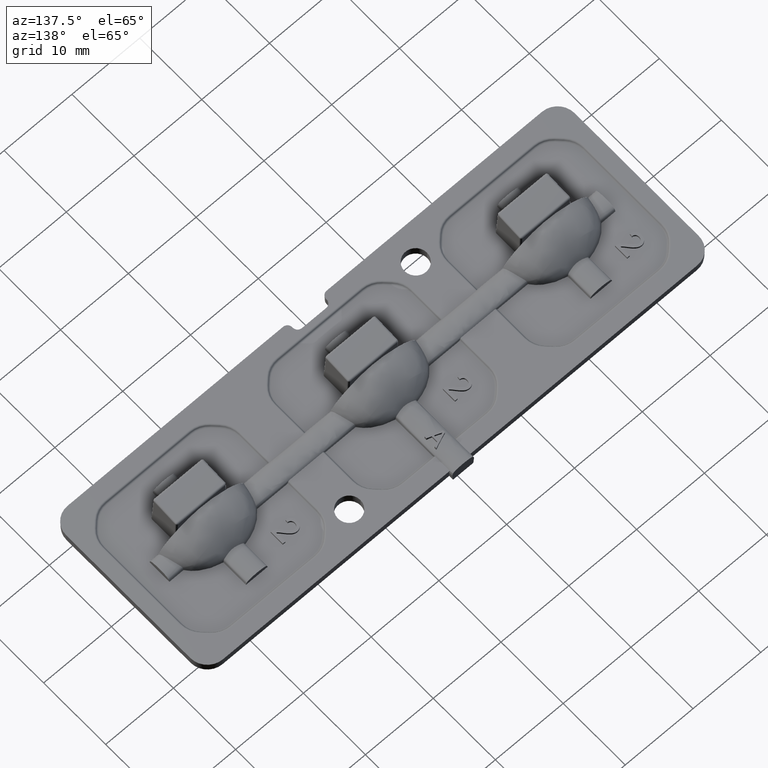
[diagram: clean part render]
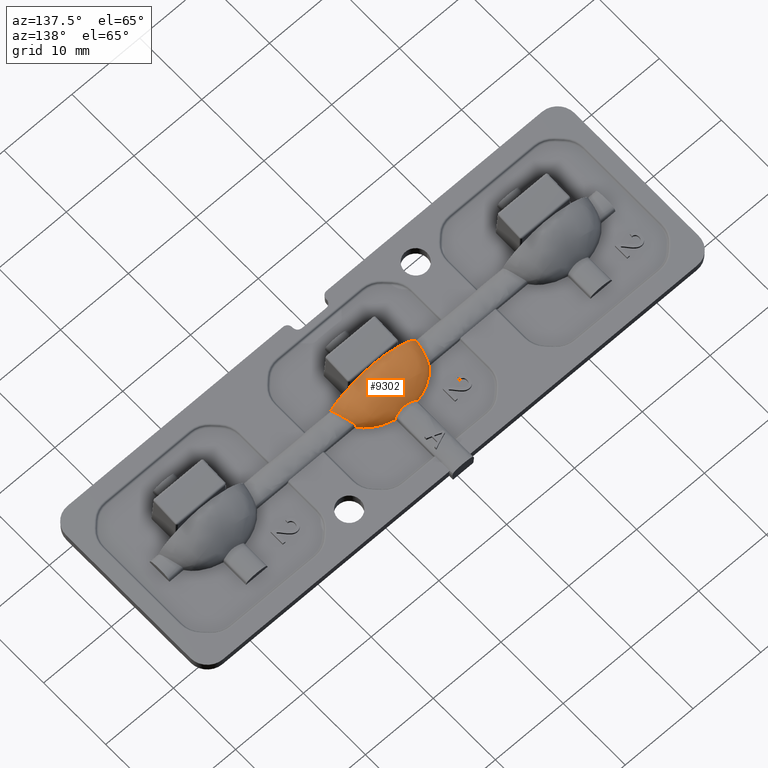
[diagram: same view with one face highlighted and labeled with its STEP entity id]
A machine part, auxiliary view. The second image highlights one B-rep face of the part: STEP entity #9302.
In plain terms, the highlighted face is a freeform B-spline surface patch.
Its self-contained STEP definition (entity closure, byte-faithful):
#15 = CARTESIAN_POINT ( 'NONE',  ( 1.506228198039878000, 3.809184108596383600, 1.568570613312605800 ) ) ;
#20 = ORIENTED_EDGE ( 'NONE', *, *, #9371, .T. ) ;
#44 = VERTEX_POINT ( 'NONE', #2837 ) ;
#104 = CARTESIAN_POINT ( 'NONE',  ( -0.2536646103747375300, 2.765282664105811700, 3.018408401136615500 ) ) ;
#166 = CARTESIAN_POINT ( 'NONE',  ( 0.1729652754115934600, 3.622831859225883500, 2.001422054282612400 ) ) ;
#196 = CARTESIAN_POINT ( 'NONE',  ( -5.559701811650086300, 1.111227689894708200, 1.833885583468201500 ) ) ;
#231 = CARTESIAN_POINT ( 'NONE',  ( 0.2482346558965557700, 3.951873610259530400, 1.383655969726491200 ) ) ;
#263 = CARTESIAN_POINT ( 'NONE',  ( -6.289939318987311600, -1.455726409393355300, 1.632099373868087800 ) ) ;
#297 = CARTESIAN_POINT ( 'NONE',  ( 0.2965361812841751900, 4.000000000000008900, 1.180800941360375900 ) ) ;
#371 = CARTESIAN_POINT ( 'NONE',  ( 4.029408204686022900, -1.520261612063174200, 3.876939541702439000 ) ) ;
#373 = CARTESIAN_POINT ( 'NONE',  ( -5.189523953033861900, 1.903779314850431600, 1.200000000000010400 ) ) ;
#398 = CARTESIAN_POINT ( 'NONE',  ( -5.418436545799328200, 1.604986396231118800, 1.199999999999999700 ) ) ;
#432 = ORIENTED_EDGE ( 'NONE', *, *, #2321, .F. ) ;
#437 = CARTESIAN_POINT ( 'NONE',  ( 4.907334048427070900, -1.482485332714300600, 3.306301486147630100 ) ) ;
#507 = CARTESIAN_POINT ( 'NONE',  ( 5.685917771185104100, -1.442253695901231300, 2.600265085028079100 ) ) ;
#538 = CARTESIAN_POINT ( 'NONE',  ( -5.421167362222871800, 1.551378782755305200, 1.400066337164170400 ) ) ;
#575 = CARTESIAN_POINT ( 'NONE',  ( 6.302036776400756300, -1.399999999999992800, 1.740900917725550100 ) ) ;
#636 = CARTESIAN_POINT ( 'NONE',  ( 6.452205943125711900, -0.8603945385336431200, 1.044231215248761200 ) ) ;
#638 = CARTESIAN_POINT ( 'NONE',  ( 3.478068853933230300, -1.399999999999992800, 4.153249892611767400 ) ) ;
#701 = CARTESIAN_POINT ( 'NONE',  ( 6.261393668831945400, 0.1087194777458000300, 0.7000000000000009500 ) ) ;
#706 = CARTESIAN_POINT ( 'NONE',  ( -5.418436545799328200, 1.604986396231118800, 1.199999999999999700 ) ) ;
#784 = CARTESIAN_POINT ( 'NONE',  ( -1.050815459940068800, -1.399999999999992800, 4.900339906212479900 ) ) ;
#856 = CARTESIAN_POINT ( 'NONE',  ( -6.503823524739639900, -1.443168436917303900, 1.050798358036729100 ) ) ;
#926 = CARTESIAN_POINT ( 'NONE',  ( -6.302034161207746600, -1.399999999999992800, 1.740907575774053300 ) ) ;
#997 = CARTESIAN_POINT ( 'NONE',  ( -5.684721889617206300, -0.8718288012345574200, 2.620099776963189100 ) ) ;
#1060 = CARTESIAN_POINT ( 'NONE',  ( -4.852864195878503000, 0.1088806195872815500, 3.366500582889009300 ) ) ;
#1113 = CARTESIAN_POINT ( 'NONE',  ( -3.798746331602632000, -1.406451361083635100, 3.999387857436825600 ) ) ;
#1121 = CARTESIAN_POINT ( 'NONE',  ( -3.755231578182326200, 1.137927993705530200, 3.695395429632089000 ) ) ;
#1172 = CARTESIAN_POINT ( 'NONE',  ( 5.414469513541949800, 1.524601638501778400, 1.499999999999999600 ) ) ;
#1183 = CARTESIAN_POINT ( 'NONE',  ( -2.656607328675862700, 1.751973296785945600, 3.706211045258585900 ) ) ;
#1208 = CARTESIAN_POINT ( 'NONE',  ( -0.2813159651652975500, 3.585963334993941900, 1.976890171649808000 ) ) ;
#1241 = CARTESIAN_POINT ( 'NONE',  ( -1.495291448406928800, 2.778897998571761000, 3.087443184831183600 ) ) ;
#1289 = CARTESIAN_POINT ( 'NONE',  ( 5.964053167475407600, -0.2220048884489155000, 1.985488526488035500 ) ) ;
#1299 = CARTESIAN_POINT ( 'NONE',  ( -0.5060512288467335900, 3.624242165508522200, 2.027821637370627700 ) ) ;
#1352 = CARTESIAN_POINT ( 'NONE',  ( 5.198533043130913400, 1.910403914675351500, 1.199999999999947800 ) ) ;
#1453 = B_SPLINE_CURVE_WITH_KNOTS ( 'NONE', 3,
 ( #4891, #6431, #16956, #7945 ),
 .UNSPECIFIED., .F., .F.,
 ( 4, 4 ),
 ( 1.207972052636044000E-015, 0.0003121465661201104400 ),
 .UNSPECIFIED. ) ;
#1467 = CARTESIAN_POINT ( 'NONE',  ( 6.316275789860277700, -1.491086363426563600, 1.575758493744677100 ) ) ;
#1493 = CARTESIAN_POINT ( 'NONE',  ( 5.418436797365901100, 1.604986396231125700, 1.199999999999999700 ) ) ;
#1613 = CARTESIAN_POINT ( 'NONE',  ( -0.08481304184433310900, 3.952655126956970300, 1.376693471674499800 ) ) ;
#1647 = CARTESIAN_POINT ( 'NONE',  ( -5.409783615699858200, 1.505872411085097600, 1.569898428305462400 ) ) ;
#1678 = CARTESIAN_POINT ( 'NONE',  ( 0.04955355308807959900, 4.000000000000008900, 1.199999999999982400 ) ) ;
#1715 = CARTESIAN_POINT ( 'NONE',  ( -5.700036996803437900, 0.7237318960017774500, 1.927655294654934600 ) ) ;
#1749 = CARTESIAN_POINT ( 'NONE',  ( 2.087233791545739500, -1.513762136422654100, 4.669573432458650000 ) ) ;
#1757 = CARTESIAN_POINT ( 'NONE',  ( 3.506413412350167600, -1.401556075287324600, 4.139570501392260100 ) ) ;
#1815 = CARTESIAN_POINT ( 'NONE',  ( 3.082627737003330800, -1.477863483369938400, 4.339638100807837500 ) ) ;
#1876 = CARTESIAN_POINT ( 'NONE',  ( 4.028430333636194400, -1.440087204021057900, 3.888270617189682400 ) ) ;
#1877 = CARTESIAN_POINT ( 'NONE',  ( -4.796002554362752700, 2.316747154803387300, 1.199999999998722500 ) ) ;
#1940 = CARTESIAN_POINT ( 'NONE',  ( 4.907940071749903800, -1.399999999999992800, 3.314515300643520800 ) ) ;
#2000 = CARTESIAN_POINT ( 'NONE',  ( 5.684727925155511800, -0.8718288012345574200, 2.620094079477351700 ) ) ;
#2064 = CARTESIAN_POINT ( 'NONE',  ( 6.116396678636702300, 0.1087355919299467900, 1.701309796784254800 ) ) ;
#2133 = CARTESIAN_POINT ( 'NONE',  ( 5.804908270361366400, 1.114658466028344100, 1.013326515914334100 ) ) ;
#2200 = CARTESIAN_POINT ( 'NONE',  ( 5.369510690590301400, 1.748365393533067600, 0.7000000000000009500 ) ) ;
#2270 = CARTESIAN_POINT ( 'NONE',  ( 0.3503131646783591600, -1.399999999999992800, 4.949999999999999300 ) ) ;
#2284 = CARTESIAN_POINT ( 'NONE',  ( -6.499999999999999100, -1.399999999999992800, 0.6999999999999992900 ) ) ;
#2321 = EDGE_CURVE ( 'NONE', #2842, #11899, #6554, .T. ) ;
#2336 = CARTESIAN_POINT ( 'NONE',  ( -3.506413415723438100, -1.401556075627163900, 4.139570491660664200 ) ) ;
#2352 = CARTESIAN_POINT ( 'NONE',  ( -6.452205940754421200, -0.8603945385336431200, 1.044232611313122400 ) ) ;
#2415 = CARTESIAN_POINT ( 'NONE',  ( -6.116395681067546200, 0.1087355919299467900, 1.701308428948389300 ) ) ;
#2456 = CARTESIAN_POINT ( 'NONE',  ( 3.497036931303530800, -1.400523711820817100, 4.144190549077598500 ) ) ;
#2466 = EDGE_LOOP ( 'NONE', ( #2793, #4445, #14170, #4920, #20, #8185, #14483, #5888, #4645, #8170, #432, #7150, #8292, #15992 ) ) ;
#2482 = CARTESIAN_POINT ( 'NONE',  ( -5.291010183558684700, 1.121566607057511400, 2.513732326616065400 ) ) ;
#2547 = CARTESIAN_POINT ( 'NONE',  ( -4.317547789850446600, 1.750005349557103100, 3.070279132226568600 ) ) ;
#2606 = CARTESIAN_POINT ( 'NONE',  ( -2.954694664387628800, 2.811144843359549000, 3.000770671431356500 ) ) ;
#2675 = CARTESIAN_POINT ( 'NONE',  ( -1.443585966651454100, 3.636934922052254200, 2.156761214392276700 ) ) ;
#2701 = CARTESIAN_POINT ( 'NONE',  ( 0.1397629545792211900, 3.575741046836613100, 1.982991931950869800 ) ) ;
#2737 = CARTESIAN_POINT ( 'NONE',  ( -0.4800778391675988900, 3.948942922644115900, 1.398461572962935900 ) ) ;
#2783 = CARTESIAN_POINT ( 'NONE',  ( 6.116780467316360200, -0.9021937582455242800, 1.891220023313538100 ) ) ;
#2793 = ORIENTED_EDGE ( 'NONE', *, *, #7132, .F. ) ;
#2800 = CARTESIAN_POINT ( 'NONE',  ( 1.604986396231113100, 3.852590497720436200, 1.200000000000001500 ) ) ;
#2837 = CARTESIAN_POINT ( 'NONE',  ( -6.316275865703553400, -1.491086363426528800, 1.575758493745534000 ) ) ;
#2842 = VERTEX_POINT ( 'NONE', #7670 ) ;
#3052 = CARTESIAN_POINT ( 'NONE',  ( -0.1487036863351415300, 4.000000000000008900, 1.196900153880599900 ) ) ;
#3127 = CARTESIAN_POINT ( 'NONE',  ( 0.3517750471300207200, -1.511017913374436400, 4.930424546530130800 ) ) ;
#3192 = CARTESIAN_POINT ( 'NONE',  ( 1.053285369409379100, -1.474397096361658400, 4.887186759945554300 ) ) ;
#3228 = CARTESIAN_POINT ( 'NONE',  ( -5.823532960308506600, 0.3202222892640309600, 1.974329617557848600 ) ) ;
#3262 = CARTESIAN_POINT ( 'NONE',  ( 2.084025953543074300, -1.437920712140877700, 4.682722820631540600 ) ) ;
#3321 = CARTESIAN_POINT ( 'NONE',  ( 3.080045768672771400, -1.399999999999999700, 4.352337937388799800 ) ) ;
#3370 = B_SPLINE_CURVE_WITH_KNOTS ( 'NONE', 3,
 ( #14604, #5584, #16128, #7106, #17630, #8616, #19144, #10099, #1113, #11637 ),
 .UNSPECIFIED., .F., .F.,
 ( 4, 2, 2, 2, 4 ),
 ( 0.01772858402733020600, 0.01870916049401780800, 0.01968973696070540700, 0.02067031342739300600, 0.02165088989408060800 ),
 .UNSPECIFIED. ) ;
#3386 = CARTESIAN_POINT ( 'NONE',  ( 4.021829704049857800, -0.8989099497367245600, 3.964755376728575700 ) ) ;
#3388 = CARTESIAN_POINT ( 'NONE',  ( -4.056831148372514100, 2.904124017113340000, 1.199999999999996800 ) ) ;
#3448 = CARTESIAN_POINT ( 'NONE',  ( 4.852863018689896000, 0.1088806195872815500, 3.366502510160332800 ) ) ;
#3525 = CARTESIAN_POINT ( 'NONE',  ( 5.291005219199979200, 1.121566607057511400, 2.513744985117014200 ) ) ;
#3586 = CARTESIAN_POINT ( 'NONE',  ( 5.287390647980595700, 1.748529389135471200, 1.584888051656841500 ) ) ;
#3653 = CARTESIAN_POINT ( 'NONE',  ( 4.375749716103626100, 2.857007022613300400, 0.9527355570482041200 ) ) ;
#3710 = EDGE_CURVE ( 'NONE', #44, #5067, #3370, .T. ) ;
#3715 = CARTESIAN_POINT ( 'NONE',  ( 2.723620567630223600, 3.667961660270251400, 0.7000000000000027300 ) ) ;
#3788 = CARTESIAN_POINT ( 'NONE',  ( 2.082422034541738100, -1.399999999999992800, 4.689297514717985400 ) ) ;
#3802 = CARTESIAN_POINT ( 'NONE',  ( -6.261393668831945400, 0.1087194777458000300, 0.7000000000000009500 ) ) ;
#3871 = CARTESIAN_POINT ( 'NONE',  ( -5.804908308488107200, 1.114658466028344100, 1.013324113251633300 ) ) ;
#3931 = CARTESIAN_POINT ( 'NONE',  ( -5.287391799198487300, 1.748529389135471200, 1.584877629679805100 ) ) ;
#3968 = B_SPLINE_CURVE_WITH_KNOTS ( 'NONE', 3,
 ( #1172, #11752, #4249, #14790, #5777, #16312, #7295, #17818, #8793, #19321, #10292, #1289, #11813, #2783, #13358, #4311, #14856, #5835, #16379, #7359 ),
 .UNSPECIFIED., .F., .F.,
 ( 4, 2, 2, 2, 2, 2, 2, 2, 2, 4 ),
 ( 0.0000000000000000000, 0.0002139943720760033500, 0.0004279887441520066900, 0.0008559774883040126300, 0.001283966232456018500, 0.001711954976608024400, 0.002567932464912035300, 0.002995921209064041600, 0.003209915581140043900, 0.003423909953216046600 ),
 .UNSPECIFIED. ) ;
#4003 = CARTESIAN_POINT ( 'NONE',  ( -4.119381406528309400, 2.843391688147344000, 2.176527338012754300 ) ) ;
#4071 = CARTESIAN_POINT ( 'NONE',  ( -2.299982912734130500, 3.653858597443887700, 2.008269001643921300 ) ) ;
#4073 = CARTESIAN_POINT ( 'NONE',  ( 5.414469513541949800, 1.524601638501778400, 1.499999999999999600 ) ) ;
#4134 = CARTESIAN_POINT ( 'NONE',  ( -0.9160237542153344400, 3.940150859797880500, 1.376725247651740000 ) ) ;
#4196 = CARTESIAN_POINT ( 'NONE',  ( -0.4424390283499536300, 4.000000000000008900, 1.151103631387411700 ) ) ;
#4221 = CARTESIAN_POINT ( 'NONE',  ( 0.5594425240599206800, 3.621066358302338800, 1.951486784454015400 ) ) ;
#4249 = CARTESIAN_POINT ( 'NONE',  ( 5.424948624773477100, 1.458383888776498400, 1.626834267193905800 ) ) ;
#4262 = CARTESIAN_POINT ( 'NONE',  ( -1.054501379042699400, -1.511595644542487600, 4.880612169137472200 ) ) ;
#4311 = CARTESIAN_POINT ( 'NONE',  ( 6.203213377940209700, -1.227710751850440200, 1.781236614138192100 ) ) ;
#4430 = CARTESIAN_POINT ( 'NONE',  ( 3.506413412350167600, -1.401556075287324600, 4.139570501392260100 ) ) ;
#4445 = ORIENTED_EDGE ( 'NONE', *, *, #15958, .T. ) ;
#4587 = CARTESIAN_POINT ( 'NONE',  ( -0.3512830626967826700, -1.474011942249624100, 4.936949697686754800 ) ) ;
#4645 = ORIENTED_EDGE ( 'NONE', *, *, #18425, .F. ) ;
#4648 = CARTESIAN_POINT ( 'NONE',  ( 0.3508004588289107000, -1.437005971124812000, 4.943474848843377100 ) ) ;
#4717 = CARTESIAN_POINT ( 'NONE',  ( 1.050827540789872000, -1.399999999999999700, 4.900338615327150600 ) ) ;
#4752 = CARTESIAN_POINT ( 'NONE',  ( -5.964051625845725000, -0.2220052136313359600, 1.985488509892516800 ) ) ;
#4784 = CARTESIAN_POINT ( 'NONE',  ( 2.062373047025049600, -0.9259910982388917000, 4.771481190798548200 ) ) ;
#4853 = CARTESIAN_POINT ( 'NONE',  ( 3.001464679221014900, 0.1090739897970566100, 4.365917769587055900 ) ) ;
#4855 = CARTESIAN_POINT ( 'NONE',  ( -5.418436545799328200, 1.604986396231118800, 1.199999999999999700 ) ) ;
#4891 = CARTESIAN_POINT ( 'NONE',  ( -1.604986396230488700, 3.852590467018127000, 1.199999999998601500 ) ) ;
#4916 = CARTESIAN_POINT ( 'NONE',  ( 3.755214845878460700, 1.137927993705530200, 3.695402325338211600 ) ) ;
#4917 = CARTESIAN_POINT ( 'NONE',  ( -3.389072292019341700, 3.267213395043466800, 1.200000000000000400 ) ) ;
#4920 = ORIENTED_EDGE ( 'NONE', *, *, #3710, .T. ) ;
#4977 = CARTESIAN_POINT ( 'NONE',  ( 4.317528797959949000, 1.750005349557103100, 3.070296001506567700 ) ) ;
#5044 = CARTESIAN_POINT ( 'NONE',  ( 4.119367837978845000, 2.843391688147344000, 2.176551852079776900 ) ) ;
#5067 = VERTEX_POINT ( 'NONE', #19435 ) ;
#5103 = VERTEX_POINT ( 'NONE', #16619 ) ;
#5109 = CARTESIAN_POINT ( 'NONE',  ( 2.696300359013352300, 3.666551353987619800, 1.202933555984086600 ) ) ;
#5137 = EDGE_CURVE ( 'NONE', #15259, #44, #8109, .T. ) ;
#5170 = CARTESIAN_POINT ( 'NONE',  ( 1.391947427173918700, 3.927646592638783600, 0.7816255105825860000 ) ) ;
#5235 = CARTESIAN_POINT ( 'NONE',  ( 1.000000000000000900, 4.000000000000008900, 0.7000000000000009500 ) ) ;
#5307 = CARTESIAN_POINT ( 'NONE',  ( 3.344263423923464100, -1.399999999999997000, 4.216475035960174400 ) ) ;
#5318 = CARTESIAN_POINT ( 'NONE',  ( -5.369510690590301400, 1.748365393533067600, 0.7000000000000009500 ) ) ;
#5390 = CARTESIAN_POINT ( 'NONE',  ( -4.375750095158690700, 2.857007022613300400, 0.9527306784533513500 ) ) ;
#5462 = CARTESIAN_POINT ( 'NONE',  ( -2.696302034342585400, 3.666551353987619800, 1.202922544770966600 ) ) ;
#5527 = CARTESIAN_POINT ( 'NONE',  ( -1.267535770595146900, 3.931358796951637900, 1.147093853664897600 ) ) ;
#5584 = CARTESIAN_POINT ( 'NONE',  ( -6.187125158118017300, -1.480537059275796500, 1.877851039364473800 ) ) ;
#5589 = CARTESIAN_POINT ( 'NONE',  ( -0.7172058214442722500, 4.000000000000001800, 1.036792596223450800 ) ) ;
#5619 = CARTESIAN_POINT ( 'NONE',  ( -1.506251936299709500, 3.809199259546634900, 1.568482020921830900 ) ) ;
#5657 = CARTESIAN_POINT ( 'NONE',  ( -3.083896906147857400, -1.516795225054901100, 4.333296840776202300 ) ) ;
#5687 = CARTESIAN_POINT ( 'NONE',  ( -1.460175484585368100, 3.799414653700097700, 1.625135204835309200 ) ) ;
#5726 = CARTESIAN_POINT ( 'NONE',  ( -2.085610638146898000, -1.475841424281769200, 4.676153026942745200 ) ) ;
#5777 = CARTESIAN_POINT ( 'NONE',  ( 5.487437321359941200, 1.293915935721297000, 1.748309344732775800 ) ) ;
#5784 = CARTESIAN_POINT ( 'NONE',  ( -1.052044099640946800, -1.437198548180822000, 4.893763993854143700 ) ) ;
#5835 = CARTESIAN_POINT ( 'NONE',  ( 6.265899244320362300, -1.403608291540709500, 1.676947497062739800 ) ) ;
#5837 = CARTESIAN_POINT ( 'NONE',  ( 1.975526731263101700, 3.777638441205345600, 1.199999999999997700 ) ) ;
#5888 = ORIENTED_EDGE ( 'NONE', *, *, #9535, .T. ) ;
#5895 = CARTESIAN_POINT ( 'NONE',  ( 3.796745679569063700, -1.406417858373484500, 4.000347249530395100 ) ) ;
#5916 = EDGE_CURVE ( 'NONE', #5103, #17439, #8694, .T. ) ;
#5959 = CARTESIAN_POINT ( 'NONE',  ( 4.885306364928220000, -1.430731558286741300, 3.304093980569490000 ) ) ;
#6003 = CARTESIAN_POINT ( 'NONE',  ( 0.9653772090738799200, 3.701547958430051500, 1.875478720847853400 ) ) ;
#6109 = CARTESIAN_POINT ( 'NONE',  ( -0.3503085476296609000, -1.399999999999992800, 4.949999999999999300 ) ) ;
#6183 = CARTESIAN_POINT ( 'NONE',  ( 0.3442219877964370900, -0.9374253609398058900, 5.031564389457794400 ) ) ;
#6220 = CARTESIAN_POINT ( 'NONE',  ( -5.414468866790151900, 1.524601638501750700, 1.500000000000001300 ) ) ;
#6251 = CARTESIAN_POINT ( 'NONE',  ( 1.001729086060228100, 0.1092190174543913700, 4.830491515236581700 ) ) ;
#6287 = CARTESIAN_POINT ( 'NONE',  ( -6.116779774031973800, -0.9021939125982941800, 1.891219985321763700 ) ) ;
#6322 = CARTESIAN_POINT ( 'NONE',  ( 1.892889035113323600, 1.154289380353555700, 4.176017484415439200 ) ) ;
#6389 = CARTESIAN_POINT ( 'NONE',  ( 2.656582374429322000, 1.751973296785945600, 3.706216530398841200 ) ) ;
#6431 = CARTESIAN_POINT ( 'NONE',  ( -1.578034178958158700, 3.848237607877723400, 1.300587044239275300 ) ) ;
#6457 = CARTESIAN_POINT ( 'NONE',  ( 2.954658249527102800, 2.811144843359556100, 3.000787016701908600 ) ) ;
#6459 = CARTESIAN_POINT ( 'NONE',  ( -2.868737231139875100, 3.490794762622864600, 1.199999999999998800 ) ) ;
#6520 = CARTESIAN_POINT ( 'NONE',  ( 2.299962394805177300, 3.653858597443887700, 2.008286979982908600 ) ) ;
#6554 = B_SPLINE_CURVE_WITH_KNOTS ( 'NONE', 3,
 ( #16380, #5837, #14858, #7360, #17886, #8864, #19387, #10357, #1352, #11881 ),
 .UNSPECIFIED., .F., .F.,
 ( 4, 2, 2, 2, 4 ),
 ( 0.01085657281088245300, 0.01197853598686421000, 0.01310049916284596600, 0.01422246233882772500, 0.01534442551480948300 ),
 .UNSPECIFIED. ) ;
#6580 = EDGE_CURVE ( 'NONE', #14932, #5103, #1453, .T. ) ;
#6586 = CARTESIAN_POINT ( 'NONE',  ( 1.267533806070010500, 3.931358796951644600, 1.147098340749393100 ) ) ;
#6599 = CARTESIAN_POINT ( 'NONE',  ( -1.604986396230488700, 3.852590467018127000, 1.199999999998601500 ) ) ;
#6618 = B_SPLINE_SURFACE_WITH_KNOTS ( 'NONE', 3, 3, ( 
 ( #9788, #8297, #11311, #2284, #12857, #3802, #14342, #5318, #15859, #6858, #17367, #8367 ),
 ( #18891, #9852, #856, #11380, #2352, #12919, #3871, #14412, #5390, #15932, #6920, #17443 ),
 ( #8432, #18958, #9920, #926, #11445, #2415, #12985, #3931, #14478, #5462, #15999, #6982 ),
 ( #17509, #8501, #19023, #9985, #997, #11511, #2482, #13052, #4003, #14544, #5527, #16068 ),
 ( #7054, #17575, #8562, #19089, #10049, #1060, #11575, #2547, #13119, #4071, #14611, #5589 ),
 ( #16135, #7113, #17636, #8621, #19150, #10106, #1121, #11643, #2606, #13179, #4134, #14675 ),
 ( #5657, #16193, #7183, #17702, #8678, #19211, #10177, #1183, #11707, #2675, #13247, #4196 ),
 ( #14737, #5726, #16256, #7241, #17770, #8745, #19273, #10242, #1241, #11763, #2737, #13310 ),
 ( #4262, #14800, #5784, #16324, #7307, #17832, #8808, #19334, #10303, #1299, #11823, #3052 ),
 ( #13611, #4587, #15134, #6109, #16650, #7639, #18159, #9122, #104, #10627, #1613, #12153 ),
 ( #3127, #13680, #4648, #15198, #6183, #16720, #7700, #18221, #9191, #166, #10699, #1678 ),
 ( #12225, #3192, #13745, #4717, #15263, #6251, #16785, #7764, #18292, #9254, #231, #10761 ),
 ( #1749, #12295, #3262, #13807, #4784, #15324, #6322, #16850, #7840, #18364, #9322, #297 ),
 ( #10823, #1815, #12366, #3321, #13879, #4853, #15395, #6389, #16914, #7906, #18431, #9379 ),
 ( #371, #10892, #1876, #12428, #3386, #13936, #4916, #15454, #6457, #16981, #7967, #18487 ),
 ( #9455, #437, #10958, #1940, #12498, #3448, #13998, #4977, #15520, #6520, #17045, #8032 ),
 ( #18548, #9514, #507, #11015, #2000, #12565, #3525, #14054, #5044, #15586, #6586, #17101 ),
 ( #8097, #18613, #9575, #575, #11084, #2064, #12635, #3586, #14120, #5109, #15647, #6652 ),
 ( #17165, #8153, #18679, #9636, #636, #11156, #2133, #12702, #3653, #14193, #5170, #15711 ),
 ( #6721, #17233, #8215, #18751, #9705, #701, #11228, #2200, #12765, #3715, #14262, #5235 ) ),
 .UNSPECIFIED., .F., .F., .F.,
 ( 4, 1, 1, 1, 1, 1, 1, 1, 2, 1, 1, 1, 1, 1, 1, 1, 4 ),
 ( 4, 3, 1, 1, 1, 1, 1, 4 ),
 ( 0.0000000000000000000, 0.06249962239470775000, 0.1249992447894155000, 0.1874988671841233400, 0.2499984895788310000, 0.3124981119735388800, 0.3749977343682466800, 0.4374973567629544300, 0.4999969791576620000, 0.5624973567629543100, 0.6249977343682464600, 0.6874981119735388300, 0.7499984895788309700, 0.8124988671841231200, 0.8749992447894154900, 0.9374996223947078500, 1.000000000000000000 ),
 ( -0.01000000000000000000, 0.0000000000000000000, 0.1250000000000000000, 0.2500000000000000000, 0.3255447612184703100, 0.3750000000000000000, 0.7500000000000000000, 1.000000000000000000 ),
 .UNSPECIFIED. ) ;
#6652 = CARTESIAN_POINT ( 'NONE',  ( 0.9333356525838415500, 4.000000000000008900, 0.8334253715909910600 ) ) ;
#6721 = CARTESIAN_POINT ( 'NONE',  ( 6.511330246557194300, -1.529505310751919000, 0.6999999999999992900 ) ) ;
#6858 = CARTESIAN_POINT ( 'NONE',  ( -2.723620567630223600, 3.667961660270251400, 0.7000000000000027300 ) ) ;
#6905 = CARTESIAN_POINT ( 'NONE',  ( -3.497036933862802700, -1.400523711962307500, 4.144190541044071800 ) ) ;
#6910 = EDGE_CURVE ( 'NONE', #17439, #2842, #16307, .T. ) ;
#6920 = CARTESIAN_POINT ( 'NONE',  ( -1.391947372249811900, 3.927646592638783600, 0.7816246336310867000 ) ) ;
#6982 = CARTESIAN_POINT ( 'NONE',  ( -0.9333352241915754400, 4.000000000000008900, 0.8334260647043286700 ) ) ;
#7054 = CARTESIAN_POINT ( 'NONE',  ( -4.907015461524687300, -1.523727999071461400, 3.302206938092829200 ) ) ;
#7106 = CARTESIAN_POINT ( 'NONE',  ( -5.606239247873365800, -1.453578581540845300, 2.649840835904299800 ) ) ;
#7113 = CARTESIAN_POINT ( 'NONE',  ( -4.028899698477584200, -1.480174408042116000, 3.882616122480125200 ) ) ;
#7132 = EDGE_CURVE ( 'NONE', #18262, #14932, #17533, .T. ) ;
#7150 = ORIENTED_EDGE ( 'NONE', *, *, #6910, .F. ) ;
#7183 = CARTESIAN_POINT ( 'NONE',  ( -3.081316092355145000, -1.438931741684962300, 4.345996339587432400 ) ) ;
#7210 = CARTESIAN_POINT ( 'NONE',  ( -1.291060983177289700, 3.768488791356741500, 1.749997594569822700 ) ) ;
#7241 = CARTESIAN_POINT ( 'NONE',  ( -2.082403779072865100, -1.399999999999992800, 4.689302256815982300 ) ) ;
#7295 = CARTESIAN_POINT ( 'NONE',  ( 5.608482213186751300, 0.9841396524413038600, 1.870239069585320200 ) ) ;
#7307 = CARTESIAN_POINT ( 'NONE',  ( -1.035457463679119400, -0.9350181477396163300, 4.982538810691679000 ) ) ;
#7359 = CARTESIAN_POINT ( 'NONE',  ( 6.316275789860277700, -1.491086363426563600, 1.575758493744677100 ) ) ;
#7360 = CARTESIAN_POINT ( 'NONE',  ( 3.046214701894261400, 3.428007726646458600, 1.199999999999997100 ) ) ;
#7488 = CARTESIAN_POINT ( 'NONE',  ( 5.602664430968665100, -1.453447370023003300, 2.653598242164258100 ) ) ;
#7536 = CARTESIAN_POINT ( 'NONE',  ( 1.290431635868623900, 3.768379432996842700, 1.750364844049079500 ) ) ;
#7639 = CARTESIAN_POINT ( 'NONE',  ( -0.3320360060078894600, 0.1092351316385381400, 4.868036744553319500 ) ) ;
#7670 = CARTESIAN_POINT ( 'NONE',  ( 1.604986396231113100, 3.852590497720436200, 1.200000000000001500 ) ) ;
#7700 = CARTESIAN_POINT ( 'NONE',  ( 0.3132920983111575600, 1.161197521382716100, 4.277037258337310600 ) ) ;
#7729 = CARTESIAN_POINT ( 'NONE',  ( -5.424947752667286200, 1.458383871728602000, 1.626834290782927200 ) ) ;
#7764 = CARTESIAN_POINT ( 'NONE',  ( 0.8864941472171359300, 1.753449257207584400, 3.849486841830325200 ) ) ;
#7807 = CARTESIAN_POINT ( 'NONE',  ( -6.203213155066635800, -1.227710812401522800, 1.781236585463700000 ) ) ;
#7840 = CARTESIAN_POINT ( 'NONE',  ( 1.495262428036055100, 2.778897998571761000, 3.087446662696276900 ) ) ;
#7906 = CARTESIAN_POINT ( 'NONE',  ( 1.443558719669290500, 3.636934922052254200, 2.156768347029797400 ) ) ;
#7945 = CARTESIAN_POINT ( 'NONE',  ( -1.524601638501765800, 3.821385187570787600, 1.499999999999999600 ) ) ;
#7967 = CARTESIAN_POINT ( 'NONE',  ( 0.9160177458197478200, 3.940150859797873400, 1.376728160459441500 ) ) ;
#7968 = CARTESIAN_POINT ( 'NONE',  ( -1.974918115895904800, 3.777761634257220900, 1.200000000000000400 ) ) ;
#8032 = CARTESIAN_POINT ( 'NONE',  ( 0.7172076106773256400, 4.000000000000008900, 1.036791453520291100 ) ) ;
#8097 = CARTESIAN_POINT ( 'NONE',  ( 6.309384994920154800, -1.528927579583874600, 1.743254784005447100 ) ) ;
#8109 = B_SPLINE_CURVE_WITH_KNOTS ( 'NONE', 3,
 ( #6220, #1647, #7729, #18257, #9222, #196, #10732, #1715, #12259, #3228, #13775, #4752, #15294, #6287, #16821, #7807, #18326, #9289, #263, #10796 ),
 .UNSPECIFIED., .F., .F.,
 ( 4, 2, 2, 2, 2, 2, 2, 2, 2, 4 ),
 ( 0.0000000000000000000, 0.0002139943856301414900, 0.0004279887712602829800, 0.0008559775425205677000, 0.001283966313780852100, 0.001711955085041136500, 0.002567932627561705500, 0.002995921398821990500, 0.003209915784452133300, 0.003423910170082276000 ),
 .UNSPECIFIED. ) ;
#8153 = CARTESIAN_POINT ( 'NONE',  ( 6.507647049099881900, -1.486336873834607900, 1.051282264390317500 ) ) ;
#8170 = ORIENTED_EDGE ( 'NONE', *, *, #17887, .F. ) ;
#8185 = ORIENTED_EDGE ( 'NONE', *, *, #10497, .T. ) ;
#8215 = CARTESIAN_POINT ( 'NONE',  ( 6.503776748852396300, -1.443168436917303900, 0.6999999999999992900 ) ) ;
#8292 = ORIENTED_EDGE ( 'NONE', *, *, #5916, .F. ) ;
#8297 = CARTESIAN_POINT ( 'NONE',  ( -6.507553497704793500, -1.486336873834607900, 0.6999999999999992900 ) ) ;
#8367 = CARTESIAN_POINT ( 'NONE',  ( -1.000000000000000900, 4.000000000000008900, 0.6999999999999992900 ) ) ;
#8416 = CARTESIAN_POINT ( 'NONE',  ( -3.487565792016635400, -1.400000000015463500, 4.148762435846831100 ) ) ;
#8432 = CARTESIAN_POINT ( 'NONE',  ( -6.309382250240143500, -1.528927579583874600, 1.743262084032705100 ) ) ;
#8471 = CARTESIAN_POINT ( 'NONE',  ( 3.487565790133063900, -1.399999999999992800, 4.148762441823694600 ) ) ;
#8501 = CARTESIAN_POINT ( 'NONE',  ( -5.685996826892962400, -1.484507391802462700, 2.598807043231697600 ) ) ;
#8562 = CARTESIAN_POINT ( 'NONE',  ( -4.907622322333320000, -1.441242666357146700, 3.310420047166643600 ) ) ;
#8616 = CARTESIAN_POINT ( 'NONE',  ( -4.885756460959884300, -1.430746334832104100, 3.303670835674096000 ) ) ;
#8621 = CARTESIAN_POINT ( 'NONE',  ( -4.027922930226333500, -1.399999999999992800, 3.893946663560854400 ) ) ;
#8678 = CARTESIAN_POINT ( 'NONE',  ( -3.063895599254344400, -0.9133532289378826200, 4.431717956563224100 ) ) ;
#8694 = B_SPLINE_CURVE_WITH_KNOTS ( 'NONE', 3,
 ( #19176, #5619, #5687, #16218, #7210, #17731, #8706, #19240, #10210, #1208, #11735, #2701, #13277, #4221, #14770, #6003, #16554, #7536, #18054, #9031, #15, #10523 ),
 .UNSPECIFIED., .F., .F.,
 ( 4, 2, 2, 2, 2, 2, 2, 2, 2, 2, 4 ),
 ( 0.0000000000000000000, 0.0002121423934728420000, 0.0004242847869456840000, 0.0008485695738913682100, 0.001272854360837052200, 0.001697139147782736000, 0.002121423934728420000, 0.002545708721674104000, 0.002969993508619788000, 0.003182135902092629800, 0.003394278295565472000 ),
 .UNSPECIFIED. ) ;
#8706 = CARTESIAN_POINT ( 'NONE',  ( -0.9675457458294967100, 3.702012310666090900, 1.874949115227846400 ) ) ;
#8745 = CARTESIAN_POINT ( 'NONE',  ( -2.007949777083860800, 0.1091585892638288600, 4.657699552127598800 ) ) ;
#8793 = CARTESIAN_POINT ( 'NONE',  ( 5.743436392226406900, 0.5895185313647370900, 1.947486454590498400 ) ) ;
#8808 = CARTESIAN_POINT ( 'NONE',  ( -0.9436338549472720300, 1.159743175902892900, 4.263515078224222600 ) ) ;
#8864 = CARTESIAN_POINT ( 'NONE',  ( 4.057243736430271100, 2.903935679646794600, 1.200000000000000200 ) ) ;
#8930 = B_SPLINE_CURVE_WITH_KNOTS ( 'NONE', 3,
 ( #15780, #12767, #18813, #9775, #784, #11296, #2270, #12843, #3788, #14329, #5307, #15846 ),
 .UNSPECIFIED., .F., .F.,
 ( 4, 1, 1, 1, 2, 1, 1, 1, 4 ),
 ( 0.2860916160708699100, 0.3124981119735388800, 0.3749977343682466800, 0.4374973567629544300, 0.4999969791576620000, 0.5624973567629543100, 0.6249977343682464600, 0.6874981119735388300, 0.7139036601096623300 ),
 .UNSPECIFIED. ) ;
#8985 = CARTESIAN_POINT ( 'NONE',  ( 6.001951363564578500, -1.471120931905313100, 2.147493647689817700 ) ) ;
#9031 = CARTESIAN_POINT ( 'NONE',  ( 1.459217978361601100, 3.799221690529350300, 1.626110595340802600 ) ) ;
#9122 = CARTESIAN_POINT ( 'NONE',  ( -0.2953369315130335800, 1.753613252809981000, 3.848756421553705100 ) ) ;
#9191 = CARTESIAN_POINT ( 'NONE',  ( 0.2536676755164335400, 2.765282664105811700, 3.018408401136615500 ) ) ;
#9222 = CARTESIAN_POINT ( 'NONE',  ( -5.487436161365534000, 1.293915821677022600, 1.748309408361049100 ) ) ;
#9254 = CARTESIAN_POINT ( 'NONE',  ( 0.5060410580887408900, 3.624242165508522200, 2.027821992209605500 ) ) ;
#9271 = B_SPLINE_CURVE_WITH_KNOTS ( 'NONE', 3,
 ( #398, #17071, #538, #11048 ),
 .UNSPECIFIED., .F., .F.,
 ( 4, 4 ),
 ( 0.0000000000000000000, 0.0003106081965305011100 ),
 .UNSPECIFIED. ) ;
#9289 = CARTESIAN_POINT ( 'NONE',  ( -6.265899244019149900, -1.403608306006743200, 1.676947483951112900 ) ) ;
#9302 = ADVANCED_FACE ( 'NONE', ( #10492 ), #6618, .T. ) ;
#9322 = CARTESIAN_POINT ( 'NONE',  ( 0.4800731997982206100, 3.948942922644115900, 1.398462165185068400 ) ) ;
#9371 = EDGE_CURVE ( 'NONE', #5067, #12641, #9770, .T. ) ;
#9379 = CARTESIAN_POINT ( 'NONE',  ( 0.4424414775384029100, 4.000000000000008900, 1.151102993158579000 ) ) ;
#9455 = CARTESIAN_POINT ( 'NONE',  ( 4.907031036765651800, -1.523727999071454300, 3.302194578899682900 ) ) ;
#9514 = CARTESIAN_POINT ( 'NONE',  ( 5.686005907928039200, -1.484507391802462700, 2.598796270624429600 ) ) ;
#9535 = EDGE_CURVE ( 'NONE', #16395, #10256, #17641, .T. ) ;
#9575 = CARTESIAN_POINT ( 'NONE',  ( 6.304486182573891800, -1.442975859861286700, 1.741685539818849100 ) ) ;
#9636 = CARTESIAN_POINT ( 'NONE',  ( 6.499999999999999100, -1.399999999999992800, 1.050309705888033100 ) ) ;
#9705 = CARTESIAN_POINT ( 'NONE',  ( 6.452790639345025200, -0.8603945385336431200, 0.6999999999999992900 ) ) ;
#9770 = B_SPLINE_CURVE_WITH_KNOTS ( 'NONE', 3,
 ( #2336, #6905, #8416, #18942 ),
 .UNSPECIFIED., .F., .F.,
 ( 4, 4 ),
 ( 4.336808689941867500E-019, 3.151128986608461700E-005 ),
 .UNSPECIFIED. ) ;
#9775 = CARTESIAN_POINT ( 'NONE',  ( -2.082403779072865100, -1.399999999999992800, 4.689302256815982300 ) ) ;
#9788 = CARTESIAN_POINT ( 'NONE',  ( -6.511330246557194300, -1.529505310751919000, 0.6999999999999992900 ) ) ;
#9852 = CARTESIAN_POINT ( 'NONE',  ( -6.507647049479294000, -1.486336873834607900, 1.051284709645885100 ) ) ;
#9920 = CARTESIAN_POINT ( 'NONE',  ( -6.304483524218549700, -1.442975859861286700, 1.741692411860271200 ) ) ;
#9985 = CARTESIAN_POINT ( 'NONE',  ( -5.685820973475620700, -1.399999999999992800, 2.601743972022247500 ) ) ;
#10049 = CARTESIAN_POINT ( 'NONE',  ( -4.911718632791616900, -0.8844666705355733700, 3.365858533414888100 ) ) ;
#10099 = CARTESIAN_POINT ( 'NONE',  ( -4.083720939849940600, -1.411962534921865600, 3.841568487519105600 ) ) ;
#10106 = CARTESIAN_POINT ( 'NONE',  ( -3.961315605369799500, 0.1089773046921690800, 3.943115365988066700 ) ) ;
#10148 = VERTEX_POINT ( 'NONE', #18383 ) ;
#10177 = CARTESIAN_POINT ( 'NONE',  ( -2.836706190429146200, 1.146654066584476700, 3.998273992767687800 ) ) ;
#10210 = CARTESIAN_POINT ( 'NONE',  ( -0.5584060849039859100, 3.620904939631511200, 1.951608624476350000 ) ) ;
#10242 = CARTESIAN_POINT ( 'NONE',  ( -1.773523398506522000, 1.752834273698564300, 3.813553798755278100 ) ) ;
#10256 = VERTEX_POINT ( 'NONE', #16653 ) ;
#10292 = CARTESIAN_POINT ( 'NONE',  ( 5.860385738222452000, 0.1849687869180197400, 1.981321554772345500 ) ) ;
#10303 = CARTESIAN_POINT ( 'NONE',  ( -0.7542478470859842500, 2.768149050309169900, 3.041258309266197600 ) ) ;
#10310 = CARTESIAN_POINT ( 'NONE',  ( 1.524601638501765800, 3.821385603054497300, 1.499999999999999600 ) ) ;
#10357 = CARTESIAN_POINT ( 'NONE',  ( 4.937172287547519500, 2.194121092429072400, 1.200000000000000200 ) ) ;
#10415 = CARTESIAN_POINT ( 'NONE',  ( 4.078184393534396400, -1.411850214198205700, 3.844784932211130700 ) ) ;
#10448 = VERTEX_POINT ( 'NONE', #638 ) ;
#10472 = CARTESIAN_POINT ( 'NONE',  ( 6.252406911412917300, -1.485869419451876700, 1.725152222766476000 ) ) ;
#10492 = FACE_OUTER_BOUND ( 'NONE', #2466, .T. ) ;
#10497 = EDGE_CURVE ( 'NONE', #12641, #10448, #8930, .T. ) ;
#10523 = CARTESIAN_POINT ( 'NONE',  ( 1.524601638501765800, 3.821385603054497300, 1.499999999999999600 ) ) ;
#10627 = CARTESIAN_POINT ( 'NONE',  ( -0.1729631854209129300, 3.622831859225883500, 2.001422054282612400 ) ) ;
#10699 = CARTESIAN_POINT ( 'NONE',  ( 0.08481406667783589200, 3.952655126956970300, 1.376693471674499800 ) ) ;
#10732 = CARTESIAN_POINT ( 'NONE',  ( -5.608480677338803000, 0.9841393963611743100, 1.870239141411243800 ) ) ;
#10761 = CARTESIAN_POINT ( 'NONE',  ( 0.1487050982950308100, 4.000000000000008900, 1.196900085809202500 ) ) ;
#10796 = CARTESIAN_POINT ( 'NONE',  ( -6.316275865703553400, -1.491086363426528800, 1.575758493745534000 ) ) ;
#10823 = CARTESIAN_POINT ( 'NONE',  ( 3.083918721168609000, -1.516795225054901100, 4.333288182517358100 ) ) ;
#10892 = CARTESIAN_POINT ( 'NONE',  ( 4.028919269161108700, -1.480174408042116000, 3.882605079446061600 ) ) ;
#10894 = CARTESIAN_POINT ( 'NONE',  ( -4.933530650926064400, 2.183088751156947400, 1.200000000000010400 ) ) ;
#10958 = CARTESIAN_POINT ( 'NONE',  ( 4.907637060088489100, -1.441242666357146700, 3.310408393395575500 ) ) ;
#11015 = CARTESIAN_POINT ( 'NONE',  ( 5.685829634442172600, -1.399999999999992800, 2.601733899431728900 ) ) ;
#11048 = CARTESIAN_POINT ( 'NONE',  ( -5.414468866790151900, 1.524601638501750700, 1.500000000000001300 ) ) ;
#11084 = CARTESIAN_POINT ( 'NONE',  ( 6.271419199236603100, -0.8628017517338326700, 1.731093141559312500 ) ) ;
#11156 = CARTESIAN_POINT ( 'NONE',  ( 6.259703700430174300, 0.1087194777458000300, 1.032090322290934600 ) ) ;
#11228 = CARTESIAN_POINT ( 'NONE',  ( 5.809880303873239200, 1.114658466028344100, 0.7000000000000009500 ) ) ;
#11296 = CARTESIAN_POINT ( 'NONE',  ( -0.3503085476296609000, -1.399999999999992800, 4.949999999999999300 ) ) ;
#11311 = CARTESIAN_POINT ( 'NONE',  ( -6.503776748852392800, -1.443168436917303900, 0.6999999999999992900 ) ) ;
#11380 = CARTESIAN_POINT ( 'NONE',  ( -6.499999999999999100, -1.399999999999992800, 1.050312006427573300 ) ) ;
#11420 = CARTESIAN_POINT ( 'NONE',  ( 3.478068853933230300, -1.399999999999992800, 4.153249892611767400 ) ) ;
#11445 = CARTESIAN_POINT ( 'NONE',  ( -6.271417123572785400, -0.8628017517338396600, 1.731097124696332300 ) ) ;
#11511 = CARTESIAN_POINT ( 'NONE',  ( -5.600167081749860100, 0.1087960201205023700, 2.608380134192557000 ) ) ;
#11575 = CARTESIAN_POINT ( 'NONE',  ( -4.606931867168540000, 1.129201920826590700, 3.217003445265261600 ) ) ;
#11578 = CARTESIAN_POINT ( 'NONE',  ( 5.418436797365901100, 1.604986396231125700, 1.199999999999999700 ) ) ;
#11637 = CARTESIAN_POINT ( 'NONE',  ( -3.506413415723438100, -1.401556075627163900, 4.139570491660664200 ) ) ;
#11643 = CARTESIAN_POINT ( 'NONE',  ( -3.518846312774437400, 1.750989323171524300, 3.480154502250988100 ) ) ;
#11707 = CARTESIAN_POINT ( 'NONE',  ( -2.232016133300984700, 2.793946526139400100, 3.095310969697826000 ) ) ;
#11735 = CARTESIAN_POINT ( 'NONE',  ( -0.1417569588104265500, 3.575836268337554200, 1.982933688067645600 ) ) ;
#11752 = CARTESIAN_POINT ( 'NONE',  ( 5.409784369708869000, 1.505872409881255900, 1.569898432798357800 ) ) ;
#11763 = CARTESIAN_POINT ( 'NONE',  ( -0.9816047417486872800, 3.629530814068407300, 2.098443967619840300 ) ) ;
#11813 = CARTESIAN_POINT ( 'NONE',  ( 6.023206354770724000, -0.4951972257385914300, 1.967918522145420500 ) ) ;
#11823 = CARTESIAN_POINT ( 'NONE',  ( -0.2482365116335712200, 3.951873610259530400, 1.383655916966354500 ) ) ;
#11830 = CARTESIAN_POINT ( 'NONE',  ( 1.578034183322202000, 3.848237673603038400, 1.300587027952458700 ) ) ;
#11881 = CARTESIAN_POINT ( 'NONE',  ( 5.418436797365901100, 1.604986396231125700, 1.199999999999999700 ) ) ;
#11899 = VERTEX_POINT ( 'NONE', #1493 ) ;
#12047 = CARTESIAN_POINT ( 'NONE',  ( 1.524601638501765800, 3.821385603054497300, 1.499999999999999600 ) ) ;
#12153 = CARTESIAN_POINT ( 'NONE',  ( -0.04955301450995652800, 4.000000000000008900, 1.199999999999982400 ) ) ;
#12225 = CARTESIAN_POINT ( 'NONE',  ( 1.054514283719134400, -1.511595644542487600, 4.880610832254754800 ) ) ;
#12259 = CARTESIAN_POINT ( 'NONE',  ( -5.743434632138487000, 0.5895181590230943500, 1.947486503973803900 ) ) ;
#12295 = CARTESIAN_POINT ( 'NONE',  ( 2.085629872544406900, -1.475841424281769200, 4.676148126545095700 ) ) ;
#12366 = CARTESIAN_POINT ( 'NONE',  ( 3.081336752838049500, -1.438931741684969200, 4.345988019098318700 ) ) ;
#12428 = CARTESIAN_POINT ( 'NONE',  ( 4.027941398111280200, -1.399999999999992800, 3.893936154933304500 ) ) ;
#12430 = CARTESIAN_POINT ( 'NONE',  ( -4.367085658393613700, 2.689632236463837400, 1.199999999998722800 ) ) ;
#12498 = CARTESIAN_POINT ( 'NONE',  ( 4.911727717517626600, -0.8844666705355663800, 3.365851641242844700 ) ) ;
#12565 = CARTESIAN_POINT ( 'NONE',  ( 5.600167947916530100, 0.1087960201205023700, 2.608383188540347200 ) ) ;
#12635 = CARTESIAN_POINT ( 'NONE',  ( 5.706664902597872000, 1.116112811508167300, 1.641514037826993500 ) ) ;
#12641 = VERTEX_POINT ( 'NONE', #14175 ) ;
#12702 = CARTESIAN_POINT ( 'NONE',  ( 5.360048556730209400, 1.748365393533067600, 0.9952081801950785100 ) ) ;
#12765 = CARTESIAN_POINT ( 'NONE',  ( 4.395386659893183000, 2.857007022613300400, 0.6999999999999992900 ) ) ;
#12767 = CARTESIAN_POINT ( 'NONE',  ( -3.344256989989744100, -1.399999999999992800, 4.216478072457431600 ) ) ;
#12843 = CARTESIAN_POINT ( 'NONE',  ( 1.050827540789872000, -1.399999999999999700, 4.900338615327150600 ) ) ;
#12857 = CARTESIAN_POINT ( 'NONE',  ( -6.452790639345027800, -0.8603945385336431200, 0.6999999999999992900 ) ) ;
#12919 = CARTESIAN_POINT ( 'NONE',  ( -6.259703702533641100, 0.1087194777458000300, 1.032089908944974900 ) ) ;
#12985 = CARTESIAN_POINT ( 'NONE',  ( -5.706665190805575900, 1.116112811508167300, 1.641506788942571800 ) ) ;
#13023 = CARTESIAN_POINT ( 'NONE',  ( 3.506413412350167600, -1.401556075287324600, 4.139570501392260100 ) ) ;
#13052 = CARTESIAN_POINT ( 'NONE',  ( -4.941907496422190100, 1.749144372644484400, 2.415931776386824200 ) ) ;
#13119 = CARTESIAN_POINT ( 'NONE',  ( -3.623156366596131100, 2.828343160579712000, 2.719454226992459300 ) ) ;
#13121 = CARTESIAN_POINT ( 'NONE',  ( 5.421167855659391900, 1.551378784597101400, 1.400066330290569600 ) ) ;
#13179 = CARTESIAN_POINT ( 'NONE',  ( -1.890799695472469700, 3.645396759748071000, 2.149342367169751400 ) ) ;
#13247 = CARTESIAN_POINT ( 'NONE',  ( -0.7028164785774538800, 3.944839959982534800, 1.402488941930945000 ) ) ;
#13277 = CARTESIAN_POINT ( 'NONE',  ( 0.2819251579736541400, 3.586010961411387800, 1.976861703885897800 ) ) ;
#13310 = CARTESIAN_POINT ( 'NONE',  ( -0.2965340078116968100, 4.000000000000001800, 1.180801254078231100 ) ) ;
#13358 = CARTESIAN_POINT ( 'NONE',  ( 6.148680177436049600, -1.037019048745244600, 1.857266279423572600 ) ) ;
#13611 = CARTESIAN_POINT ( 'NONE',  ( -0.3517703202303434900, -1.511017913374436400, 4.930424546530130800 ) ) ;
#13680 = CARTESIAN_POINT ( 'NONE',  ( 0.3512877529794656800, -1.474011942249624100, 4.936949697686754800 ) ) ;
#13745 = CARTESIAN_POINT ( 'NONE',  ( 1.052056455099627200, -1.437198548180829100, 4.893762687636353800 ) ) ;
#13775 = CARTESIAN_POINT ( 'NONE',  ( -5.860383987630001500, 0.1849684196236200100, 1.981321568496105200 ) ) ;
#13807 = CARTESIAN_POINT ( 'NONE',  ( 2.082422034541738100, -1.399999999999992800, 4.689297514717985400 ) ) ;
#13879 = CARTESIAN_POINT ( 'NONE',  ( 3.063908466606781700, -0.9133532289378826200, 4.431711916019806600 ) ) ;
#13936 = CARTESIAN_POINT ( 'NONE',  ( 3.961313751666556200, 0.1089773046921690800, 3.943114878891287300 ) ) ;
#13937 = CARTESIAN_POINT ( 'NONE',  ( -3.560134110572521500, 3.181937353292887000, 1.199999999999996400 ) ) ;
#13998 = CARTESIAN_POINT ( 'NONE',  ( 4.606919274018798300, 1.129201920826590700, 3.217015071716374100 ) ) ;
#14054 = CARTESIAN_POINT ( 'NONE',  ( 4.941899134723218600, 1.749144372644484400, 2.415949596288409700 ) ) ;
#14120 = CARTESIAN_POINT ( 'NONE',  ( 4.340791670741666900, 2.854140636409942200, 1.453239879461273100 ) ) ;
#14170 = ORIENTED_EDGE ( 'NONE', *, *, #5137, .T. ) ;
#14175 = CARTESIAN_POINT ( 'NONE',  ( -3.478068854142084100, -1.399999999999992800, 4.153249886619060600 ) ) ;
#14193 = CARTESIAN_POINT ( 'NONE',  ( 2.706628894010361600, 3.667961660270251400, 0.8712208610375231600 ) ) ;
#14256 = B_SPLINE_CURVE_WITH_KNOTS ( 'NONE', 3,
 ( #11578, #19092, #13121, #4073 ),
 .UNSPECIFIED., .F., .F.,
 ( 4, 4 ),
 ( 0.0000000000000000000, 0.0003106081914826854300 ),
 .UNSPECIFIED. ) ;
#14262 = CARTESIAN_POINT ( 'NONE',  ( 1.410336563755086000, 3.927646592638783600, 0.6999999999999992900 ) ) ;
#14329 = CARTESIAN_POINT ( 'NONE',  ( 2.887998616652546900, -1.399999999999998600, 4.417204204056338000 ) ) ;
#14342 = CARTESIAN_POINT ( 'NONE',  ( -5.809880303873239200, 1.114658466028344100, 0.7000000000000009500 ) ) ;
#14412 = CARTESIAN_POINT ( 'NONE',  ( -5.360048668166919900, 1.748365393533067600, 0.9952047034921320800 ) ) ;
#14478 = CARTESIAN_POINT ( 'NONE',  ( -4.340794463303480700, 2.854140636409942200, 1.453225316225546400 ) ) ;
#14483 = ORIENTED_EDGE ( 'NONE', *, *, #15576, .T. ) ;
#14544 = CARTESIAN_POINT ( 'NONE',  ( -2.590774583510487200, 3.661262705427727100, 1.674381949230793900 ) ) ;
#14604 = CARTESIAN_POINT ( 'NONE',  ( -6.316275865703553400, -1.491086363426528800, 1.575758493745534000 ) ) ;
#14611 = CARTESIAN_POINT ( 'NONE',  ( -1.112965902606288800, 3.935461759613219100, 1.298018452823779900 ) ) ;
#14675 = CARTESIAN_POINT ( 'NONE',  ( -0.5836019116580888300, 4.000000000000008900, 1.104277380528899000 ) ) ;
#14737 = CARTESIAN_POINT ( 'NONE',  ( -2.087214067683917900, -1.513762136422661000, 4.669578412006127400 ) ) ;
#14770 = CARTESIAN_POINT ( 'NONE',  ( 0.6960362826207245900, 3.645992510016866200, 1.932449304922270800 ) ) ;
#14790 = CARTESIAN_POINT ( 'NONE',  ( 5.463828628831289600, 1.352512933043093800, 1.715119882035176100 ) ) ;
#14800 = CARTESIAN_POINT ( 'NONE',  ( -1.053272739341824900, -1.474397096361651500, 4.887188081495807500 ) ) ;
#14856 = CARTESIAN_POINT ( 'NONE',  ( 6.222771635474574100, -1.290070139159798000, 1.751292606104908600 ) ) ;
#14858 = CARTESIAN_POINT ( 'NONE',  ( 2.338116235234767100, 3.678450181804164400, 1.199999999999996800 ) ) ;
#14932 = VERTEX_POINT ( 'NONE', #6599 ) ;
#14977 = CARTESIAN_POINT ( 'NONE',  ( 4.621468284600265300, -1.423971964251518500, 3.497663427452273800 ) ) ;
#15056 = CARTESIAN_POINT ( 'NONE',  ( -5.414468866790151900, 1.524601638501750700, 1.500000000000001300 ) ) ;
#15134 = CARTESIAN_POINT ( 'NONE',  ( -0.3507958051632217900, -1.437005971124812000, 4.943474848843377100 ) ) ;
#15198 = CARTESIAN_POINT ( 'NONE',  ( 0.3503131646783591600, -1.399999999999992800, 4.949999999999999300 ) ) ;
#15259 = VERTEX_POINT ( 'NONE', #15056 ) ;
#15263 = CARTESIAN_POINT ( 'NONE',  ( 1.035466111917946000, -0.9350181477396163300, 4.982537711462130800 ) ) ;
#15294 = CARTESIAN_POINT ( 'NONE',  ( -6.023205109688462700, -0.4951974929644500400, 1.967918489597050300 ) ) ;
#15324 = CARTESIAN_POINT ( 'NONE',  ( 2.007950321752188600, 0.1091585892638358000, 4.657697778651187700 ) ) ;
#15395 = CARTESIAN_POINT ( 'NONE',  ( 2.836689728550834100, 1.146654066584476700, 3.998276869142178800 ) ) ;
#15454 = CARTESIAN_POINT ( 'NONE',  ( 3.518821342494590000, 1.750989323171524300, 3.480165439003653400 ) ) ;
#15456 = CARTESIAN_POINT ( 'NONE',  ( -3.043774730053344000, 3.421397577969118600, 1.200000000000000400 ) ) ;
#15520 = CARTESIAN_POINT ( 'NONE',  ( 3.623128251306357400, 2.828343160579712000, 2.719477966098667700 ) ) ;
#15576 = EDGE_CURVE ( 'NONE', #10448, #16395, #17377, .T. ) ;
#15586 = CARTESIAN_POINT ( 'NONE',  ( 2.590764928744625300, 3.661262705427727100, 1.674400402954648200 ) ) ;
#15647 = CARTESIAN_POINT ( 'NONE',  ( 1.357479851261295800, 3.928428109336223400, 0.9373652554941803700 ) ) ;
#15711 = CARTESIAN_POINT ( 'NONE',  ( 0.9810518782343152800, 4.000000000000008900, 0.7457873704006141600 ) ) ;
#15780 = CARTESIAN_POINT ( 'NONE',  ( -3.478068854142084100, -1.399999999999992800, 4.153249886619060600 ) ) ;
#15846 = CARTESIAN_POINT ( 'NONE',  ( 3.478068853933230300, -1.399999999999992800, 4.153249892611767400 ) ) ;
#15859 = CARTESIAN_POINT ( 'NONE',  ( -4.395386659893183000, 2.857007022613300400, 0.6999999999999992900 ) ) ;
#15932 = CARTESIAN_POINT ( 'NONE',  ( -2.706628958904760300, 3.667961660270251400, 0.8712171703659822300 ) ) ;
#15958 = EDGE_CURVE ( 'NONE', #18262, #15259, #9271, .T. ) ;
#15992 = ORIENTED_EDGE ( 'NONE', *, *, #6580, .F. ) ;
#15999 = CARTESIAN_POINT ( 'NONE',  ( -1.357480022588734200, 3.928428109336223400, 0.9373626045142431400 ) ) ;
#16068 = CARTESIAN_POINT ( 'NONE',  ( -0.8361503836437009800, 4.000000000000001800, 0.9470439378292117000 ) ) ;
#16128 = CARTESIAN_POINT ( 'NONE',  ( -6.011966190754447900, -1.471103137982859200, 2.148003198960059600 ) ) ;
#16135 = CARTESIAN_POINT ( 'NONE',  ( -4.029388082603210500, -1.520261612063181100, 3.876950851939758600 ) ) ;
#16193 = CARTESIAN_POINT ( 'NONE',  ( -3.082606499251503000, -1.477863483369931600, 4.339646590181817300 ) ) ;
#16218 = CARTESIAN_POINT ( 'NONE',  ( -1.352577074719588000, 3.779107459490876200, 1.715267947899155300 ) ) ;
#16256 = CARTESIAN_POINT ( 'NONE',  ( -2.084007208609881500, -1.437920712140884600, 4.682727641879362900 ) ) ;
#16307 = B_SPLINE_CURVE_WITH_KNOTS ( 'NONE', 3,
 ( #10310, #19341, #11830, #2800 ),
 .UNSPECIFIED., .F., .F.,
 ( 4, 4 ),
 ( 0.0000000000000000000, 0.0003121465276537880300 ),
 .UNSPECIFIED. ) ;
#16312 = CARTESIAN_POINT ( 'NONE',  ( 5.559703220899822700, 1.111227890628435000, 1.833885509852675800 ) ) ;
#16324 = CARTESIAN_POINT ( 'NONE',  ( -1.050815459940068800, -1.399999999999992800, 4.900339906212479900 ) ) ;
#16379 = CARTESIAN_POINT ( 'NONE',  ( 6.289939267016605700, -1.455726406299300300, 1.632099378796961100 ) ) ;
#16380 = CARTESIAN_POINT ( 'NONE',  ( 1.604986396231113100, 3.852590497720436200, 1.200000000000001500 ) ) ;
#16395 = VERTEX_POINT ( 'NONE', #1757 ) ;
#16502 = CARTESIAN_POINT ( 'NONE',  ( 5.375838184112780900, -1.445481550305218300, 2.881709473207418000 ) ) ;
#16554 = CARTESIAN_POINT ( 'NONE',  ( 1.100016223520999800, 3.731825419985599400, 1.838226668095384000 ) ) ;
#16619 = CARTESIAN_POINT ( 'NONE',  ( -1.524601638501765800, 3.821385187570787600, 1.499999999999999600 ) ) ;
#16650 = CARTESIAN_POINT ( 'NONE',  ( -0.3442178284601485300, -0.9374253609398058900, 5.031564389457794400 ) ) ;
#16653 = CARTESIAN_POINT ( 'NONE',  ( 6.316275789860277700, -1.491086363426563600, 1.575758493744677100 ) ) ;
#16720 = CARTESIAN_POINT ( 'NONE',  ( 0.3320400181458307800, 0.1092351316385381400, 4.868036744553319500 ) ) ;
#16785 = CARTESIAN_POINT ( 'NONE',  ( 0.9436295782150327900, 1.159743175902892900, 4.263514798679694600 ) ) ;
#16821 = CARTESIAN_POINT ( 'NONE',  ( -6.148679687425284300, -1.037019171486279800, 1.857266239554110200 ) ) ;
#16850 = CARTESIAN_POINT ( 'NONE',  ( 1.773504046586892800, 1.752834273698564300, 3.813555498496429500 ) ) ;
#16914 = CARTESIAN_POINT ( 'NONE',  ( 2.231979514257187400, 2.793946526139400100, 3.095320035046958700 ) ) ;
#16956 = CARTESIAN_POINT ( 'NONE',  ( -1.551207581470257100, 3.839054035950921300, 1.400705269058311700 ) ) ;
#16981 = CARTESIAN_POINT ( 'NONE',  ( 1.890772839326218400, 3.645396759748063900, 2.149354930294297400 ) ) ;
#16982 = CARTESIAN_POINT ( 'NONE',  ( -2.337326536264119300, 3.678697588853439000, 1.199999999999998800 ) ) ;
#17045 = CARTESIAN_POINT ( 'NONE',  ( 1.112961331800312000, 3.935461759613219100, 1.298022773275517600 ) ) ;
#17071 = CARTESIAN_POINT ( 'NONE',  ( -5.422230890551651900, 1.578174558459440200, 1.300063140808161100 ) ) ;
#17101 = CARTESIAN_POINT ( 'NONE',  ( 0.8361514862800338800, 4.000000000000008900, 0.9470428382579634300 ) ) ;
#17165 = CARTESIAN_POINT ( 'NONE',  ( 6.511470573649827300, -1.529505310751919000, 1.051768543641459900 ) ) ;
#17233 = CARTESIAN_POINT ( 'NONE',  ( 6.507553497704793500, -1.486336873834607900, 0.6999999999999992900 ) ) ;
#17367 = CARTESIAN_POINT ( 'NONE',  ( -1.410336563755086000, 3.927646592638783600, 0.6999999999999992900 ) ) ;
#17377 = B_SPLINE_CURVE_WITH_KNOTS ( 'NONE', 3,
 ( #11420, #8471, #2456, #13023 ),
 .UNSPECIFIED., .F., .F.,
 ( 4, 4 ),
 ( 7.196809890336066100E-015, 3.151128537260537900E-005 ),
 .UNSPECIFIED. ) ;
#17439 = VERTEX_POINT ( 'NONE', #12047 ) ;
#17443 = CARTESIAN_POINT ( 'NONE',  ( -0.9810517753828031900, 4.000000000000008900, 0.7457876189371301900 ) ) ;
#17509 = CARTESIAN_POINT ( 'NONE',  ( -5.686084753601637200, -1.526761087703701200, 2.597338578836420700 ) ) ;
#17533 = B_SPLINE_CURVE_WITH_KNOTS ( 'NONE', 3,
 ( #4855, #18365, #373, #10894, #1877, #12430, #3388, #13937, #4917, #15456, #6459, #16982, #7968, #18489 ),
 .UNSPECIFIED., .F., .F.,
 ( 4, 2, 2, 2, 2, 2, 4 ),
 ( 0.003189798101267602100, 0.003750835412698587700, 0.004311872724129572700, 0.005433947346991542000, 0.005994984658422526600, 0.006556021969853510400, 0.007678096592715478000 ),
 .UNSPECIFIED. ) ;
#17575 = CARTESIAN_POINT ( 'NONE',  ( -4.907318891929003600, -1.482485332714300600, 3.306313492629737300 ) ) ;
#17630 = CARTESIAN_POINT ( 'NONE',  ( -5.374607158448195100, -1.445443289056614900, 2.882805132013601200 ) ) ;
#17636 = CARTESIAN_POINT ( 'NONE',  ( -4.028411314351957100, -1.440087204021057900, 3.888281393020489600 ) ) ;
#17641 = B_SPLINE_CURVE_WITH_KNOTS ( 'NONE', 3,
 ( #4430, #5895, #10415, #14977, #5959, #16502, #7488, #18007, #8985, #19510, #10472, #1467 ),
 .UNSPECIFIED., .F., .F.,
 ( 4, 2, 2, 2, 2, 4 ),
 ( 0.003505898148198300300, 0.004469113257392815600, 0.005432328366587331000, 0.006395543475781846300, 0.006877151030379103500, 0.007358758584976360700 ),
 .UNSPECIFIED. ) ;
#17702 = CARTESIAN_POINT ( 'NONE',  ( -3.080025685458790600, -1.399999999999992800, 4.352346088993045600 ) ) ;
#17731 = CARTESIAN_POINT ( 'NONE',  ( -1.101931561810186400, 3.732209131099198700, 1.837494681993339800 ) ) ;
#17770 = CARTESIAN_POINT ( 'NONE',  ( -2.062360909860151600, -0.9259910982388917000, 4.771484943523713400 ) ) ;
#17818 = CARTESIAN_POINT ( 'NONE',  ( 5.700038708036889700, 0.7237322390370275500, 1.927655234384315400 ) ) ;
#17832 = CARTESIAN_POINT ( 'NONE',  ( -1.001726561128297900, 0.1092190174543913700, 4.830492231039578100 ) ) ;
#17886 = CARTESIAN_POINT ( 'NONE',  ( 3.393125169494156400, 3.275305864863393300, 1.200000000000000200 ) ) ;
#17887 = EDGE_CURVE ( 'NONE', #11899, #10148, #14256, .T. ) ;
#18007 = CARTESIAN_POINT ( 'NONE',  ( 5.906846206538036300, -1.466551418009359700, 2.278347404995461300 ) ) ;
#18054 = CARTESIAN_POINT ( 'NONE',  ( 1.351937216850513900, 3.779001648724473700, 1.715628029103095600 ) ) ;
#18159 = CARTESIAN_POINT ( 'NONE',  ( -0.3132883127098876100, 1.161197521382716100, 4.277037258337310600 ) ) ;
#18221 = CARTESIAN_POINT ( 'NONE',  ( 0.2953405001998241100, 1.753613252809981000, 3.848756421553705100 ) ) ;
#18257 = CARTESIAN_POINT ( 'NONE',  ( -5.463827554233224000, 1.352512862672107900, 1.715119931344462900 ) ) ;
#18262 = VERTEX_POINT ( 'NONE', #706 ) ;
#18292 = CARTESIAN_POINT ( 'NONE',  ( 0.7542345547717974600, 2.768149050309169900, 3.041258671393121600 ) ) ;
#18326 = CARTESIAN_POINT ( 'NONE',  ( -6.222771496485774100, -1.290070179759917700, 1.751292583161138300 ) ) ;
#18364 = CARTESIAN_POINT ( 'NONE',  ( 0.9815829421304621500, 3.629530814068407300, 2.098446822191939900 ) ) ;
#18365 = CARTESIAN_POINT ( 'NONE',  ( -5.308518647864787000, 1.757648050878775700, 1.200000000000000000 ) ) ;
#18383 = CARTESIAN_POINT ( 'NONE',  ( 5.414469513541949800, 1.524601638501778400, 1.499999999999999600 ) ) ;
#18425 = EDGE_CURVE ( 'NONE', #10148, #10256, #3968, .T. ) ;
#18431 = CARTESIAN_POINT ( 'NONE',  ( 0.7028104727045472200, 3.944839959982534800, 1.402490523949641700 ) ) ;
#18487 = CARTESIAN_POINT ( 'NONE',  ( 0.5836042122665183700, 4.000000000000001800, 1.104276433209865100 ) ) ;
#18489 = CARTESIAN_POINT ( 'NONE',  ( -1.604986396230488700, 3.852590467018127000, 1.199999999998601500 ) ) ;
#18548 = CARTESIAN_POINT ( 'NONE',  ( 5.686094044670970700, -1.526761087703701200, 2.597327456220779800 ) ) ;
#18613 = CARTESIAN_POINT ( 'NONE',  ( 6.306935588747022900, -1.485951719722580700, 1.742470161912148100 ) ) ;
#18679 = CARTESIAN_POINT ( 'NONE',  ( 6.503823524549940900, -1.443168436917303900, 1.050795985139175300 ) ) ;
#18751 = CARTESIAN_POINT ( 'NONE',  ( 6.499999999999999100, -1.399999999999992800, 0.6999999999999992900 ) ) ;
#18813 = CARTESIAN_POINT ( 'NONE',  ( -2.887985625701751300, -1.399999999999992800, 4.417209422676887000 ) ) ;
#18891 = CARTESIAN_POINT ( 'NONE',  ( -6.511470574218934700, -1.529505310751919000, 1.051771061255040800 ) ) ;
#18942 = CARTESIAN_POINT ( 'NONE',  ( -3.478068854142084100, -1.399999999999992800, 4.153249886619060600 ) ) ;
#18958 = CARTESIAN_POINT ( 'NONE',  ( -6.306932887229339500, -1.485951719722580700, 1.742477247946487200 ) ) ;
#19023 = CARTESIAN_POINT ( 'NONE',  ( -5.685908900184292000, -1.442253695901231300, 2.600275507626972300 ) ) ;
#19089 = CARTESIAN_POINT ( 'NONE',  ( -4.907925752737639900, -1.399999999999992800, 3.314526601703551300 ) ) ;
#19092 = CARTESIAN_POINT ( 'NONE',  ( 5.422231246809086100, 1.578174560233947000, 1.300063134185665700 ) ) ;
#19144 = CARTESIAN_POINT ( 'NONE',  ( -4.626581915814790100, -1.424097491371541200, 3.494068801049028400 ) ) ;
#19150 = CARTESIAN_POINT ( 'NONE',  ( -4.021818128656005500, -0.8989099497367245600, 3.964762545315418100 ) ) ;
#19176 = CARTESIAN_POINT ( 'NONE',  ( -1.524601638501765800, 3.821385187570787600, 1.499999999999999600 ) ) ;
#19211 = CARTESIAN_POINT ( 'NONE',  ( -3.001465735022836000, 0.1090739897970566100, 4.365919587031381600 ) ) ;
#19240 = CARTESIAN_POINT ( 'NONE',  ( -0.6966176668528031300, 3.646090667824758700, 1.932396535499892200 ) ) ;
#19273 = CARTESIAN_POINT ( 'NONE',  ( -1.892901319068187400, 1.154289380353548800, 4.176017041076097900 ) ) ;
#19321 = CARTESIAN_POINT ( 'NONE',  ( 5.823534742817433800, 0.3202226634157145400, 1.974329592531104800 ) ) ;
#19334 = CARTESIAN_POINT ( 'NONE',  ( -0.8865022054113831400, 1.753449257207577500, 3.849486864424194600 ) ) ;
#19341 = CARTESIAN_POINT ( 'NONE',  ( 1.551207587811679800, 3.839054168924742600, 1.400705245391811000 ) ) ;
#19387 = CARTESIAN_POINT ( 'NONE',  ( 4.367302822236806200, 2.689340864383008300, 1.200000000000000200 ) ) ;
#19435 = CARTESIAN_POINT ( 'NONE',  ( -3.506413415723438100, -1.401556075627163900, 4.139570491660664200 ) ) ;
#19510 = CARTESIAN_POINT ( 'NONE',  ( 6.175242923326769600, -1.480802052104106800, 1.870262637614797900 ) ) ;